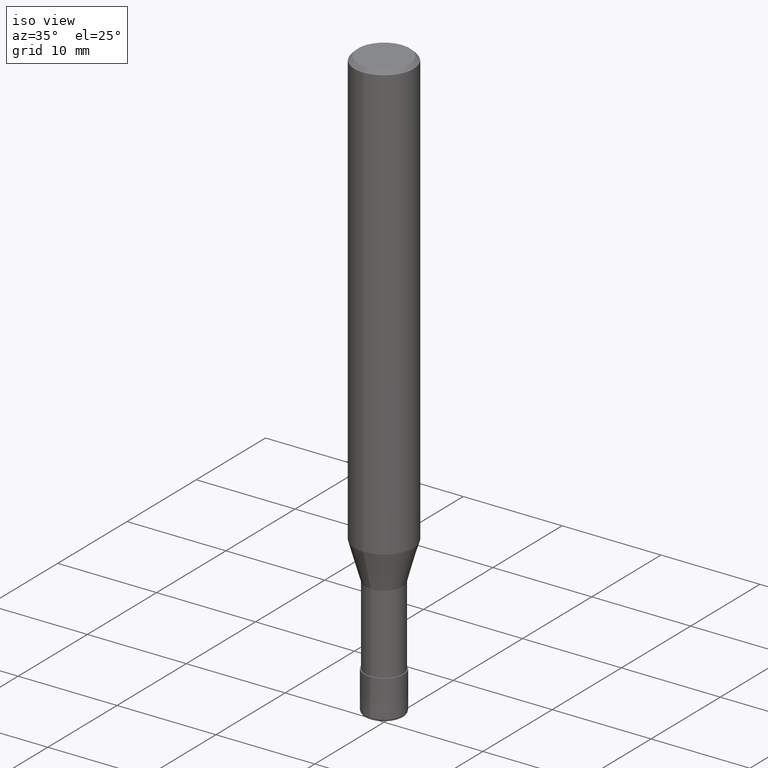
[diagram: clean part render]
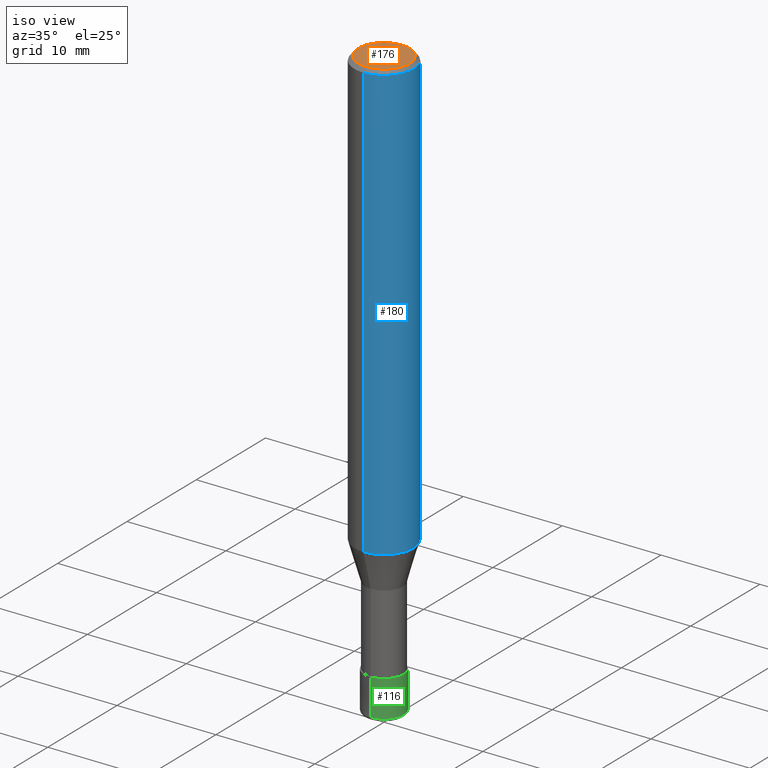
[diagram: same view with three faces highlighted in distinct colors, each labeled with its STEP entity id]
A machine part, iso view with three faces highlighted in distinct colors.
Their STEP definitions:

[orange] entity #176 — the highlighted planar face has unit normal (-0, 0, 1).
#136=VERTEX_POINT('',#295);
#176=ADVANCED_FACE('',(#340),#341,.T.);
#202=EDGE_CURVE('',#220,#136,#369,.T.);
#206=EDGE_CURVE('',#136,#220,#373,.T.);
#220=VERTEX_POINT('',#389);
#295=CARTESIAN_POINT('',(3.18397651993818E-016,-2.6,0.0));
#340=FACE_OUTER_BOUND('',#524,.T.);
#341=PLANE('',#525);
#369=CIRCLE('',#561,2.6);
#373=CIRCLE('',#566,2.6);
#389=CARTESIAN_POINT('',(0.0,2.6,0.0));
#524=EDGE_LOOP('',(#719,#720));
#525=AXIS2_PLACEMENT_3D('',#721,#722,#723);
#561=AXIS2_PLACEMENT_3D('',#754,#755,#756);
#566=AXIS2_PLACEMENT_3D('',#757,#758,#759);
#719=ORIENTED_EDGE('',*,*,#202,.F.);
#720=ORIENTED_EDGE('',*,*,#206,.F.);
#721=CARTESIAN_POINT('',(0.0,1.3,0.0));
#722=DIRECTION('',(-0.0,0.0,1.0));
#723=DIRECTION('',(0.0,-1.0,0.0));
#754=CARTESIAN_POINT('',(0.0,0.0,0.0));
#755=DIRECTION('',(0.0,0.0,-1.0));
#756=DIRECTION('',(0.0,1.0,0.0));
#757=CARTESIAN_POINT('',(0.0,0.0,0.0));
#758=DIRECTION('',(0.0,0.0,-1.0));
#759=DIRECTION('',(0.0,1.0,0.0));

[blue] entity #180 — the highlighted cylindrical surface (edge-blend (fillet) strip) has radius 3 mm, axis along (-0, -0, 1).
#100=EDGE_CURVE('',#130,#188,#253,.T.);
#104=VERTEX_POINT('',#257);
#122=VERTEX_POINT('',#280);
#130=VERTEX_POINT('',#289);
#144=EDGE_CURVE('',#122,#104,#303,.T.);
#180=ADVANCED_FACE('',(#345),#346,.T.);
#188=VERTEX_POINT('',#354);
#200=EDGE_CURVE('',#104,#188,#367,.T.);
#210=EDGE_CURVE('',#130,#122,#377,.T.);
#253=CIRCLE('',#417,3.0);
#257=CARTESIAN_POINT('',(3.67381906146713E-016,-3.0,-44.199));
#280=CARTESIAN_POINT('',(0.0,3.0,-44.199));
#289=CARTESIAN_POINT('',(0.0,3.0,-0.399999999999999));
#303=CIRCLE('',#479,3.0);
#345=FACE_OUTER_BOUND('',#530,.T.);
#346=CYLINDRICAL_SURFACE('',#531,3.0);
#354=CARTESIAN_POINT('',(3.67381906146713E-016,-3.0,-0.399999999999999));
#367=LINE('',#557,#558);
#377=LINE('',#572,#573);
#417=AXIS2_PLACEMENT_3D('',#606,#607,#608);
#479=AXIS2_PLACEMENT_3D('',#666,#667,#668);
#530=EDGE_LOOP('',(#728,#729,#730,#731));
#531=AXIS2_PLACEMENT_3D('',#732,#733,#734);
#557=CARTESIAN_POINT('',(3.67381906146713E-016,-3.0,-22.2995));
#558=VECTOR('',#753,1.0);
#572=CARTESIAN_POINT('',(-3.67381906146713E-016,3.0,-22.2995));
#573=VECTOR('',#763,1.0);
#606=CARTESIAN_POINT('',(0.0,0.0,-0.399999999999999));
#607=DIRECTION('',(0.0,0.0,-1.0));
#608=DIRECTION('',(0.0,1.0,0.0));
#666=CARTESIAN_POINT('',(0.0,0.0,-44.199));
#667=DIRECTION('',(0.0,0.0,-1.0));
#668=DIRECTION('',(0.0,1.0,0.0));
#728=ORIENTED_EDGE('',*,*,#210,.F.);
#729=ORIENTED_EDGE('',*,*,#100,.T.);
#730=ORIENTED_EDGE('',*,*,#200,.F.);
#731=ORIENTED_EDGE('',*,*,#144,.F.);
#732=CARTESIAN_POINT('',(0.0,0.0,-22.2995));
#733=DIRECTION('',(-0.0,-0.0,1.0));
#734=DIRECTION('',(0.0,1.0,0.0));
#753=DIRECTION('',(-0.0,-0.0,1.0));
#763=DIRECTION('',(0.0,0.0,-1.0));

[green] entity #116 — the highlighted conical surface has half-angle 0.002 deg.
#116=ADVANCED_FACE('',(#273),#274,.T.);
#138=EDGE_CURVE('',#170,#142,#297,.T.);
#140=EDGE_CURVE('',#148,#170,#299,.T.);
#142=VERTEX_POINT('',#301);
#148=VERTEX_POINT('',#307);
#160=VERTEX_POINT('',#322);
#170=VERTEX_POINT('',#333);
#186=EDGE_CURVE('',#160,#148,#352,.T.);
#228=EDGE_CURVE('',#160,#142,#399,.T.);
#273=FACE_OUTER_BOUND('',#438,.T.);
#274=CONICAL_SURFACE('',#439,1.99995,2.70270270204433E-005);
#297=LINE('',#470,#471);
#299=CIRCLE('',#474,2.0);
#301=CARTESIAN_POINT('',(2.44909024700937E-016,-1.9999,-56.0));
#307=CARTESIAN_POINT('',(0.0,2.0,-59.7));
#322=CARTESIAN_POINT('',(0.0,1.9999,-56.0));
#333=CARTESIAN_POINT('',(2.44921270764475E-016,-2.0,-59.7));
#352=LINE('',#540,#541);
#399=CIRCLE('',#598,1.9999);
#438=EDGE_LOOP('',(#643,#644,#645,#646));
#439=AXIS2_PLACEMENT_3D('',#647,#648,#649);
#470=CARTESIAN_POINT('',(2.44915147732706E-016,-1.99995,-57.85));
#471=VECTOR('',#662,1.0);
#474=AXIS2_PLACEMENT_3D('',#663,#664,#665);
#540=CARTESIAN_POINT('',(-2.44915147732706E-016,1.99995,-57.85));
#541=VECTOR('',#741,1.0);
#598=AXIS2_PLACEMENT_3D('',#797,#798,#799);
#643=ORIENTED_EDGE('',*,*,#186,.F.);
#644=ORIENTED_EDGE('',*,*,#228,.T.);
#645=ORIENTED_EDGE('',*,*,#138,.F.);
#646=ORIENTED_EDGE('',*,*,#140,.F.);
#647=CARTESIAN_POINT('',(0.0,0.0,-57.85));
#648=DIRECTION('',(0.0,-0.0,-1.0));
#649=DIRECTION('',(0.0,1.0,0.0));
#662=DIRECTION('',(-3.30974690101346E-021,2.7027027017153E-005,0.99999999963477));
#663=CARTESIAN_POINT('',(0.0,0.0,-59.7));
#664=DIRECTION('',(0.0,0.0,-1.0));
#665=DIRECTION('',(0.0,1.0,0.0));
#741=DIRECTION('',(-3.30974690101346E-021,2.7027027017153E-005,-0.99999999963477));
#797=CARTESIAN_POINT('',(0.0,0.0,-56.0));
#798=DIRECTION('',(0.0,0.0,-1.0));
#799=DIRECTION('',(0.0,1.0,0.0));